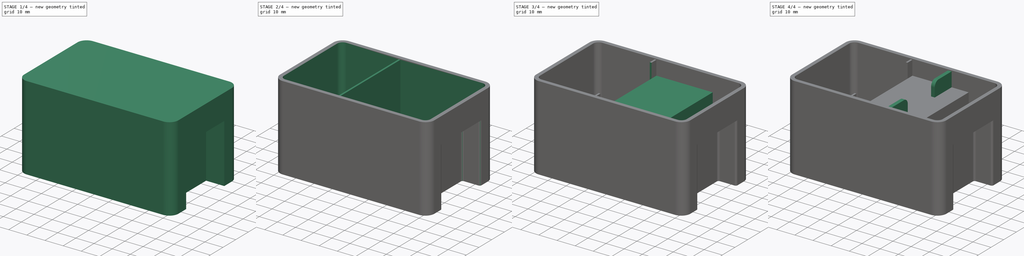
[diagram: build sequence overview — one tinted view per stage of 4, left to right]
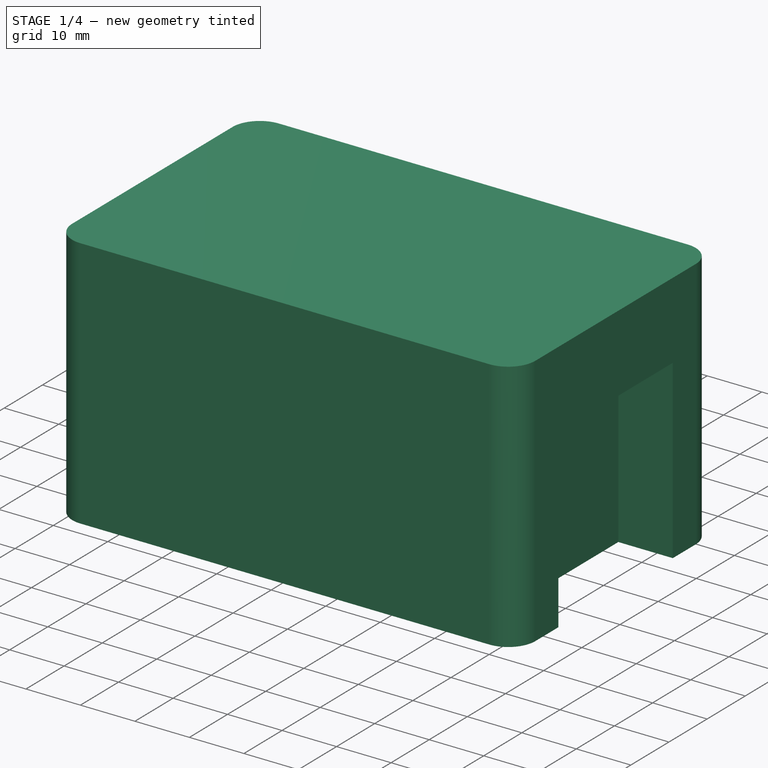
[diagram: stage 1 of 4 — iso view after this stage's code; geometry added in this stage tinted green]
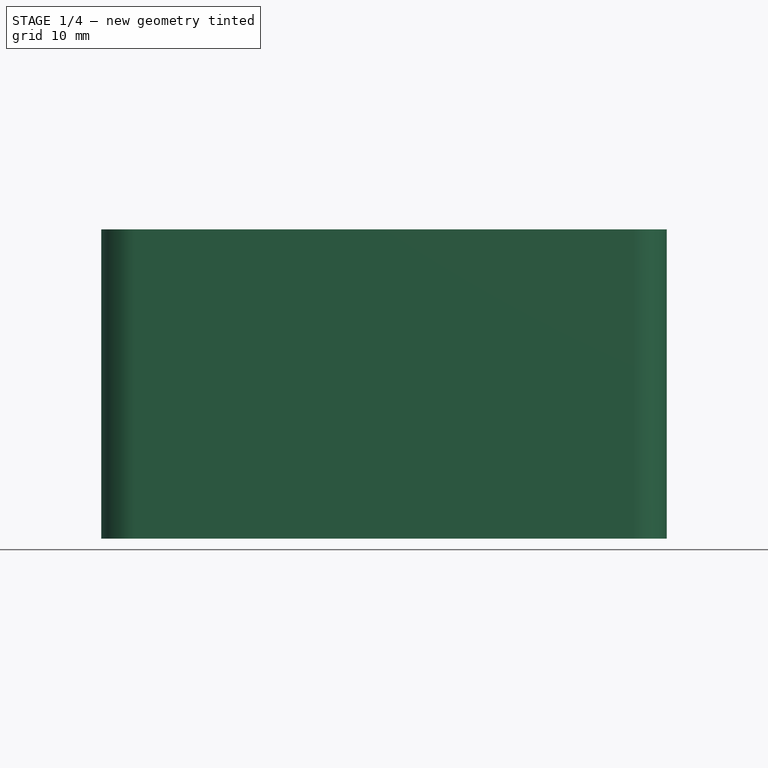
[diagram: stage 1 of 4 — front view after this stage's code; geometry added in this stage tinted green]
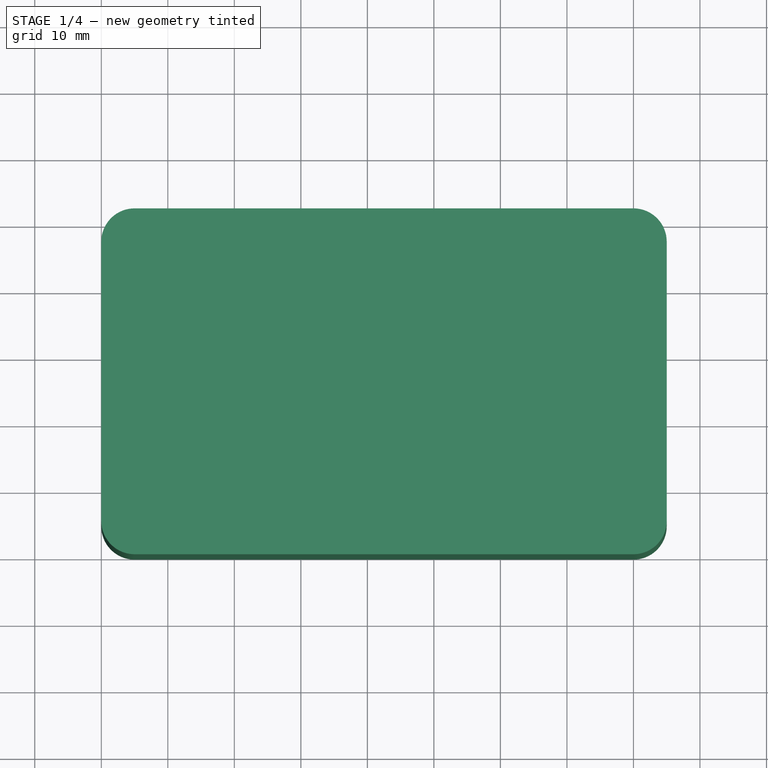
[diagram: stage 1 of 4 — top view after this stage's code; geometry added in this stage tinted green]
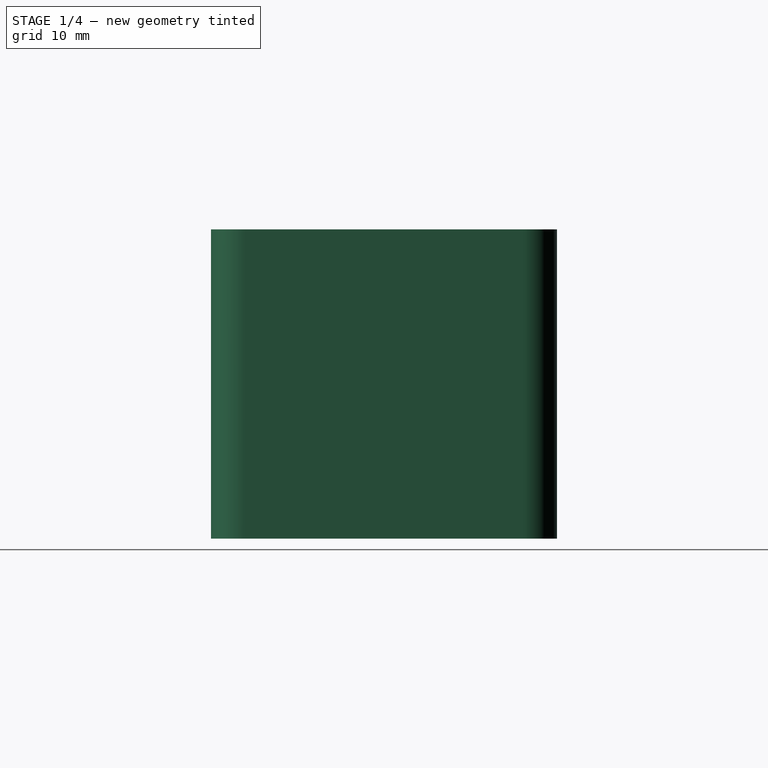
[diagram: stage 1 of 4 — right view after this stage's code; geometry added in this stage tinted green]
FCSTD DOCUMENT  (FreeCAD 0.20R29410 (Git))
Label: Case
License: All rights reserved
LicenseURL: http://en.wikipedia.org/wiki/All_rights_reserved
objects: Sketcher::SketchObject×5, PartDesign::Fillet×3, PartDesign::Pad×3, PartDesign::Pocket×2, PartDesign::AdditiveBox×1, PartDesign::Thickness×1, PartDesign::Plane×1, PartDesign::Mirrored×1, PartDesign::Body×1
note: 28 computed .brp shape members not serialized (recipe doc carries the construction recipe); baked Part::Feature solids carry a one-line shape summary decoded from their .brp

FEATURE [PartDesign::AdditiveBox] Box002
  AttacherType = Attacher::AttachEngine3D
  Height = 46.5
  Length = 85
  MapMode = 5
  Support = -> [XY_Plane076]
  Width = 52
FEATURE [PartDesign::Fillet] Fillet006
  Base = -> Box002 [Edge5,Edge1,Edge7,Edge3]
  BaseFeature = -> Box002
  Radius = 5
  SupportTransform = false
  UseAllEdges = false
FEATURE [Sketcher::SketchObject] Sketch010
  ExternalGeometry = -> [Fillet006]
  FullyConstrained = true
  MapMode = 5
  Placement = pos=(85,0,0) rot=(0.57735,0.57735,0.57735;2.0944rad)
  Support = -> [Fillet006]
  sketch-geometry (5):
    g0: LineSegment StartX=11 StartY=0 StartZ=0 EndX=41 EndY=0 EndZ=0
    g1: LineSegment StartX=41 StartY=0 StartZ=0 EndX=41 EndY=32.4 EndZ=0
    g2: LineSegment StartX=41 StartY=32.4 StartZ=0 EndX=11 EndY=32.4 EndZ=0
    g3: LineSegment StartX=11 StartY=32.4 StartZ=0 EndX=11 EndY=0 EndZ=0
    g4: LineSegment StartX=26 StartY=46.5 StartZ=0 EndX=26 EndY=0 EndZ=0
  constraints (14):
    c: Coincident(g0,g1)
    c: Coincident(g1,g2)
    c: Coincident(g2,g3)
    c: Coincident(g3,g0)
    c: Horizontal(g0)
    c: Horizontal(g2)
    c: Vertical(g1)
    c: Vertical(g3)
    c: PointOnObject(g0,g-1)
    c: PointOnObject(g4,g0)
    c: Symmetric(g-3,g-3,g4)
    c: Symmetric(g2,g1,g4)
    c: DistanceX(g2,g2) = 30
    c: DistanceY(g1,g-3) = 14.1
FEATURE [PartDesign::Pocket] Pocket001
  BaseFeature = -> Fillet006
  Direction = (-1,0,0)
  Length = 10
  Length2 = 5
  Profile = -> Sketch010
  ReferenceAxis = -> Sketch010 [N_Axis]
  Type = 0
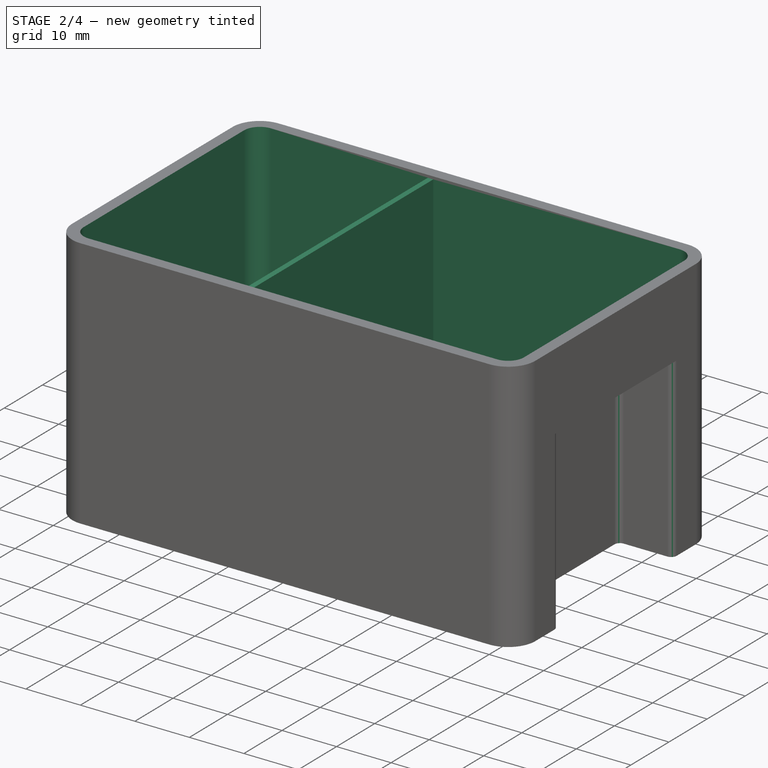
[diagram: stage 2 of 4 — iso view after this stage's code; geometry added in this stage tinted green]
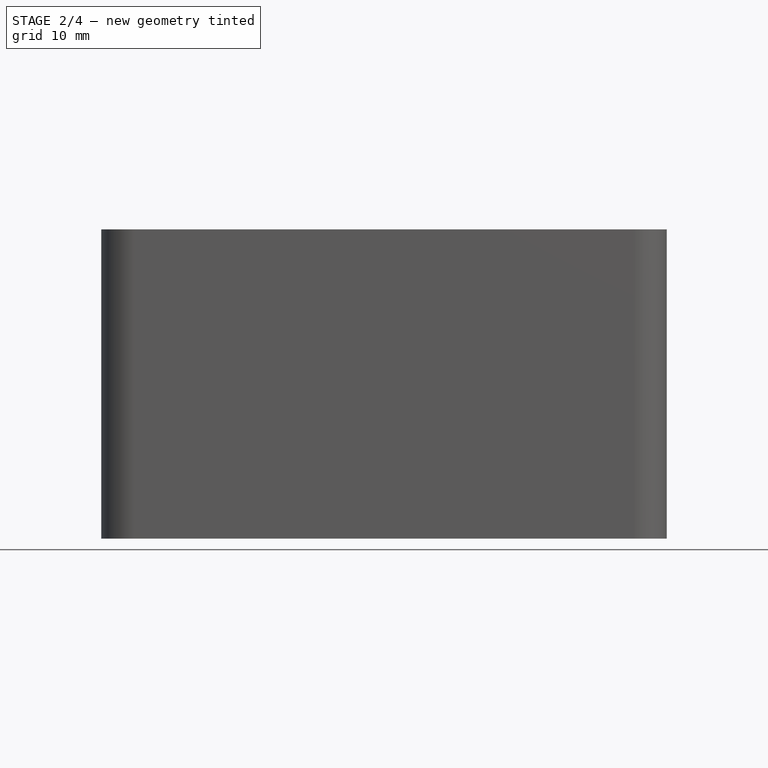
[diagram: stage 2 of 4 — front view after this stage's code; geometry added in this stage tinted green]
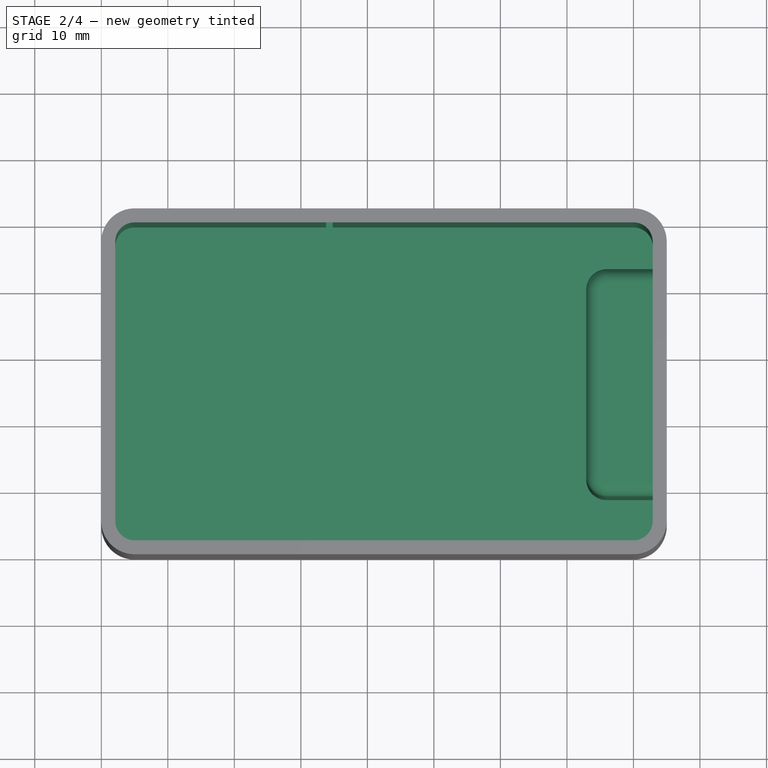
[diagram: stage 2 of 4 — top view after this stage's code; geometry added in this stage tinted green]
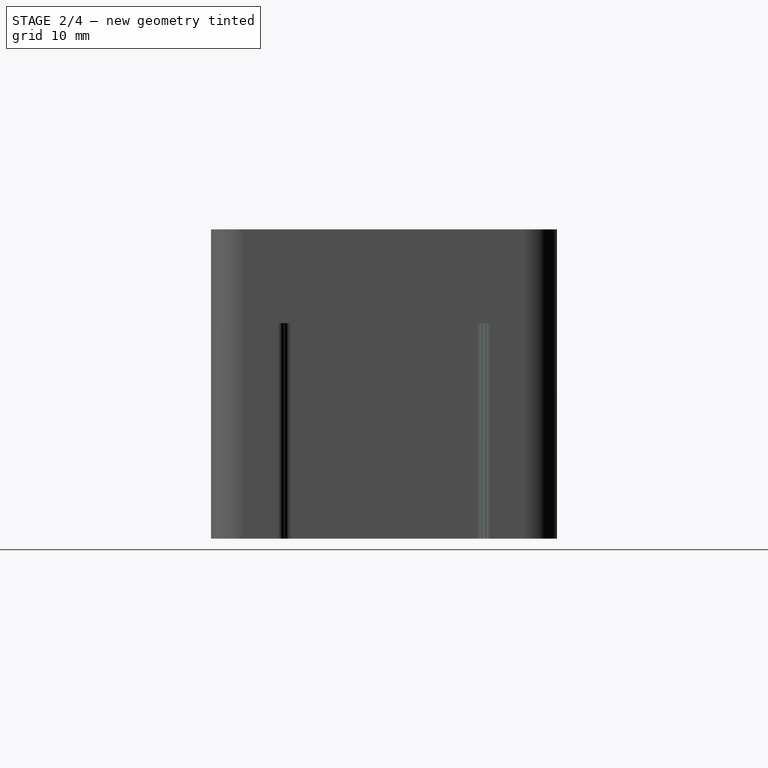
[diagram: stage 2 of 4 — right view after this stage's code; geometry added in this stage tinted green]
FEATURE [PartDesign::Fillet] Fillet007
  Base = -> Pocket001 [Edge31,Edge35,Edge33,Edge29]
  BaseFeature = -> Pocket001
  Radius = 1
  SupportTransform = false
  UseAllEdges = false
FEATURE [PartDesign::Thickness] Thickness001
  Base = -> Fillet007 [Face18]
  BaseFeature = -> Fillet007
  Intersection = true
  Join = 0
  Mode = 0
  Reversed = true
  SupportTransform = false
  Value = 2.1
FEATURE [Sketcher::SketchObject] Sketch011
  ExternalGeometry = -> [Thickness001]
  FullyConstrained = true
  MapMode = 5
  Placement = pos=(0,0,2.1) rot=(0,0,1;0rad)
  Support = -> [Thickness001]
  sketch-geometry (4):
    g0: LineSegment StartX=33.8 StartY=49.9 StartZ=0 EndX=34.8 EndY=49.9 EndZ=0
    g1: LineSegment StartX=34.8 StartY=49.9 StartZ=0 EndX=34.8 EndY=2.1 EndZ=0
    g2: LineSegment StartX=34.8 StartY=2.1 StartZ=0 EndX=33.8 EndY=2.1 EndZ=0
    g3: LineSegment StartX=33.8 StartY=2.1 StartZ=0 EndX=33.8 EndY=49.9 EndZ=0
  constraints (12):
    c: Coincident(g0,g1)
    c: Coincident(g1,g2)
    c: Coincident(g2,g3)
    c: Coincident(g3,g0)
    c: Horizontal(g0)
    c: Horizontal(g2)
    c: Vertical(g1)
    c: Vertical(g3)
    c: PointOnObject(g0,g-3)
    c: PointOnObject(g1,g-4)
    c: DistanceX(g0,g0) = 1
    c: DistanceX(g-5,g0) = 31.7
FEATURE [PartDesign::Pad] Pad009
  BaseFeature = -> Thickness001
  Direction = (0,0,1)
  Length = 45
  Length2 = 10
  Offset = -0.5
  Profile = -> Sketch011
  ReferenceAxis = -> Sketch011 [N_Axis]
  Type = 3
  UpToFace = -> Thickness001 [Face18]
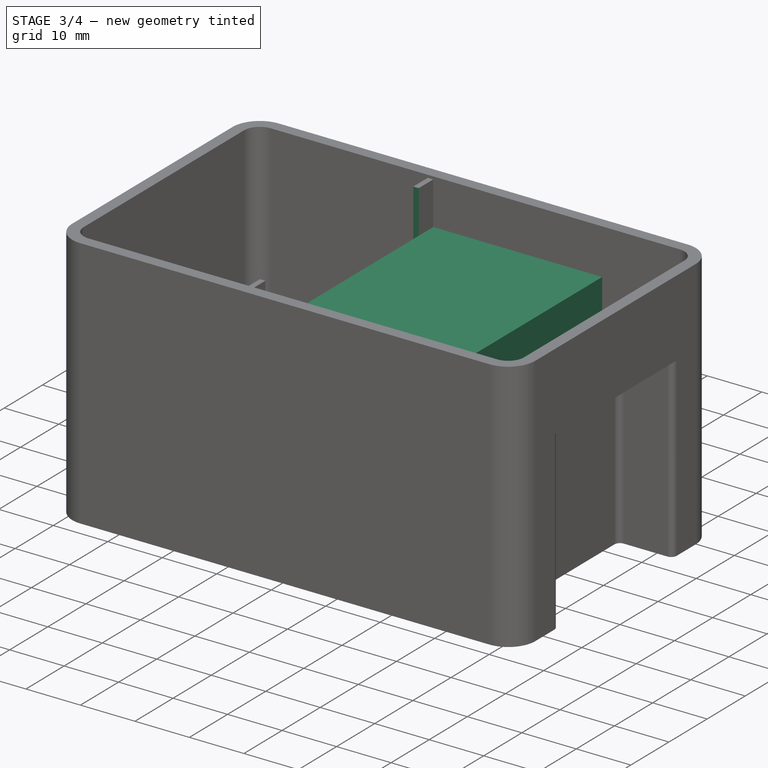
[diagram: stage 3 of 4 — iso view after this stage's code; geometry added in this stage tinted green]
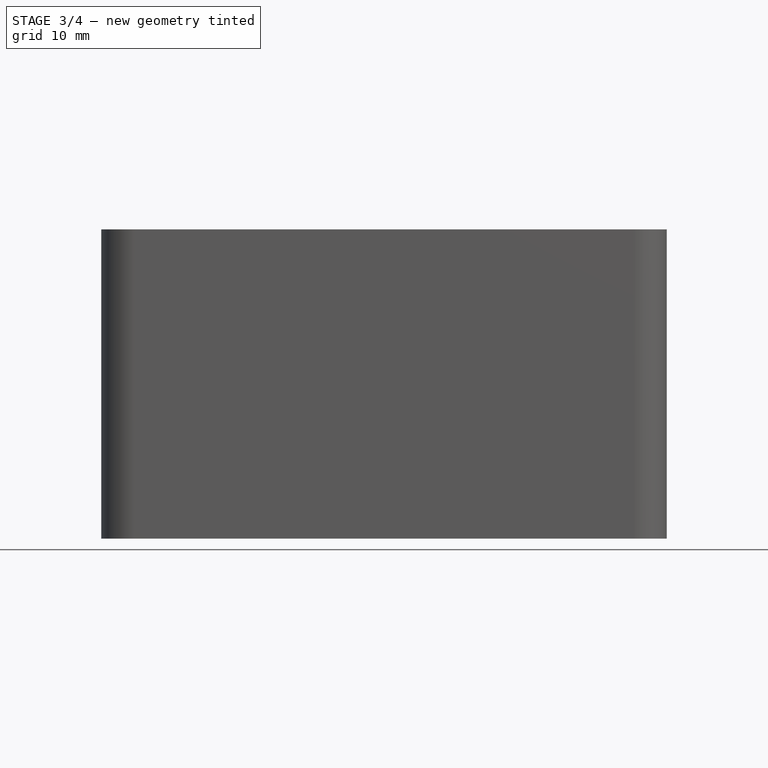
[diagram: stage 3 of 4 — front view after this stage's code; geometry added in this stage tinted green]
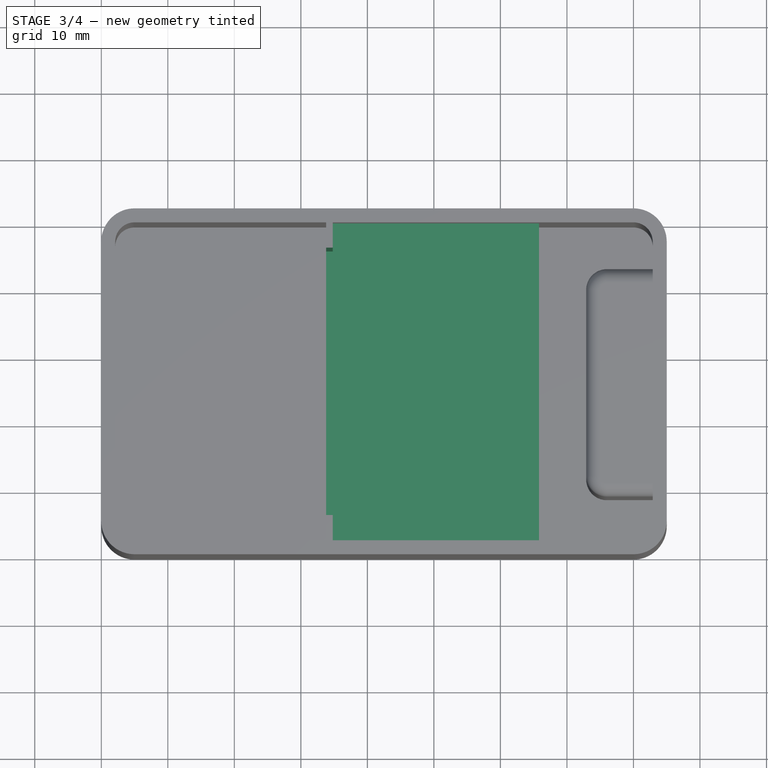
[diagram: stage 3 of 4 — top view after this stage's code; geometry added in this stage tinted green]
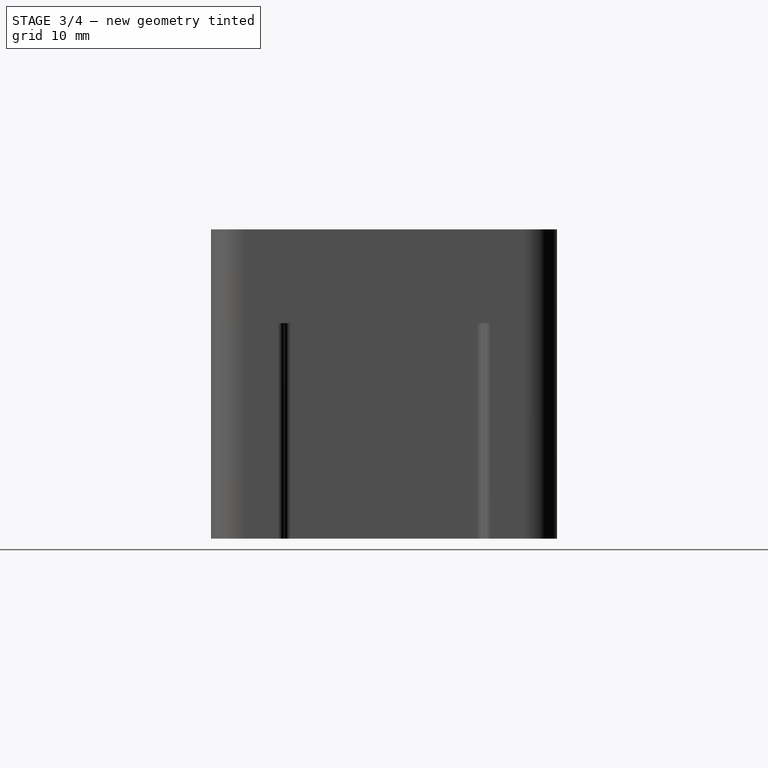
[diagram: stage 3 of 4 — right view after this stage's code; geometry added in this stage tinted green]
FEATURE [Sketcher::SketchObject] Sketch012
  ExternalGeometry = -> [Pad009]
  FullyConstrained = false
  MapMode = 5
  Placement = pos=(0,0,46) rot=(0,0,1;0rad)
  Support = -> [Pad009]
  sketch-geometry (5):
    g0: LineSegment StartX=34.8 StartY=26 StartZ=0 EndX=9.24822 EndY=26 EndZ=0
    g1: LineSegment StartX=34.8 StartY=5.9 StartZ=0 EndX=16.991 EndY=5.9 EndZ=0
    g2: LineSegment StartX=16.991 StartY=5.9 StartZ=0 EndX=16.991 EndY=46.1 EndZ=0
    g3: LineSegment StartX=16.991 StartY=46.1 StartZ=0 EndX=34.8 EndY=46.1 EndZ=0
    g4: LineSegment StartX=34.8 StartY=46.1 StartZ=0 EndX=34.8 EndY=5.9 EndZ=0
  constraints (12):
    c: PointOnObject(g0,g-3)
    c: Symmetric(g-3,g-3,g0)
    c: Coincident(g1,g2)
    c: Coincident(g2,g3)
    c: Coincident(g3,g4)
    c: Coincident(g4,g1)
    c: Horizontal(g1)
    c: Horizontal(g3)
    c: Vertical(g4)
    c: PointOnObject(g1,g-3)
    c: Symmetric(g2,g1,g0)
    c: DistanceY(g2,g2) = 40.2
FEATURE [PartDesign::Pocket] Pocket002
  BaseFeature = -> Pad009
  Direction = (0,0,-1)
  Length = 33.44
  Length2 = 5
  Profile = -> Sketch012
  ReferenceAxis = -> Sketch012 [N_Axis]
  Type = 0
FEATURE [Sketcher::SketchObject] Sketch
  ExternalGeometry = -> [Pocket002]
  FullyConstrained = true
  MapMode = 5
  Placement = pos=(0,0,2.1) rot=(0,0,1;0rad)
  Support = -> [Pocket002]
  sketch-geometry (4):
    g0: LineSegment StartX=34.8 StartY=49.9 StartZ=0 EndX=65.8 EndY=49.9 EndZ=0
    g1: LineSegment StartX=65.8 StartY=49.9 StartZ=0 EndX=65.8 EndY=2.1 EndZ=0
    g2: LineSegment StartX=65.8 StartY=2.1 StartZ=0 EndX=34.8 EndY=2.1 EndZ=0
    g3: LineSegment StartX=34.8 StartY=2.1 StartZ=0 EndX=34.8 EndY=49.9 EndZ=0
  constraints (10):
    c: Coincident(g0,g1)
    c: Coincident(g1,g2)
    c: Coincident(g2,g3)
    c: Coincident(g3,g0)
    c: Horizontal(g0)
    c: Horizontal(g2)
    c: Vertical(g1)
    c: Coincident(g0,g-3)
    c: Coincident(g2,g-3)
    c: DistanceX(g0,g0) = 31
FEATURE [PartDesign::Pad] Pad
  BaseFeature = -> Pocket002
  Direction = (0,0,1)
  Length = 36
  Length2 = 10
  Profile = -> Sketch
  ReferenceAxis = -> Sketch [N_Axis]
  Type = 0
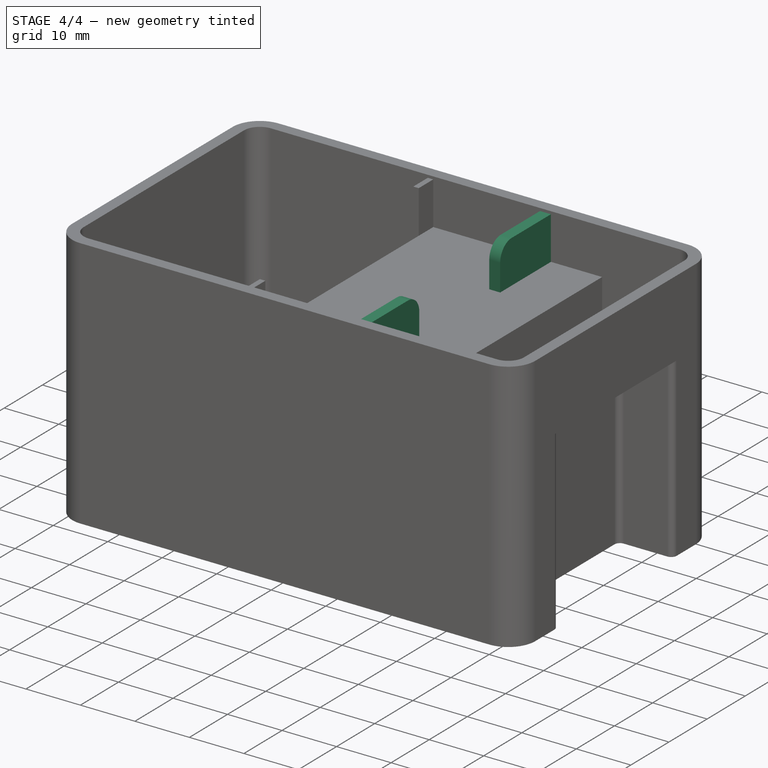
[diagram: stage 4 of 4 — iso view after this stage's code; geometry added in this stage tinted green]
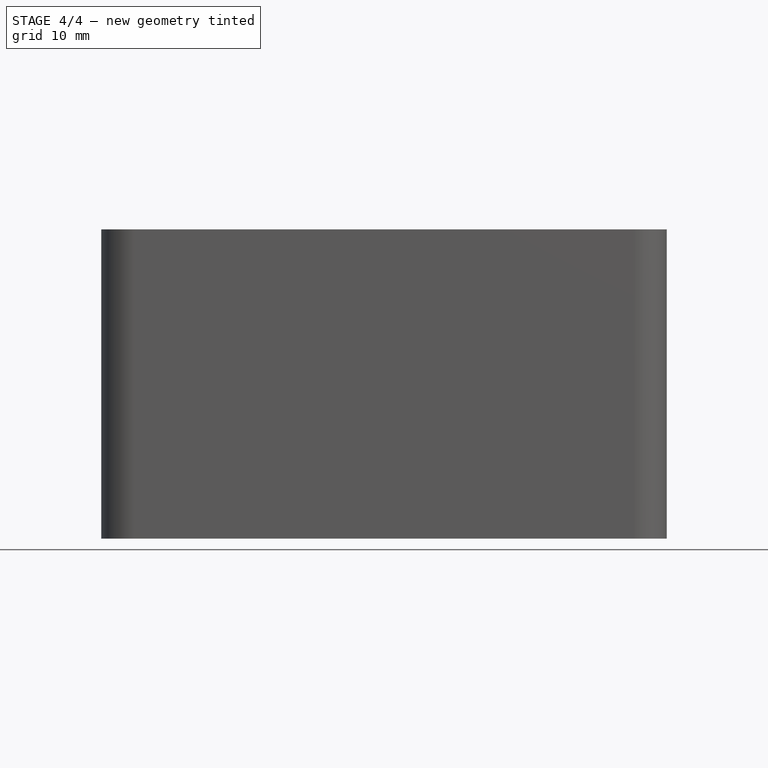
[diagram: stage 4 of 4 — front view after this stage's code; geometry added in this stage tinted green]
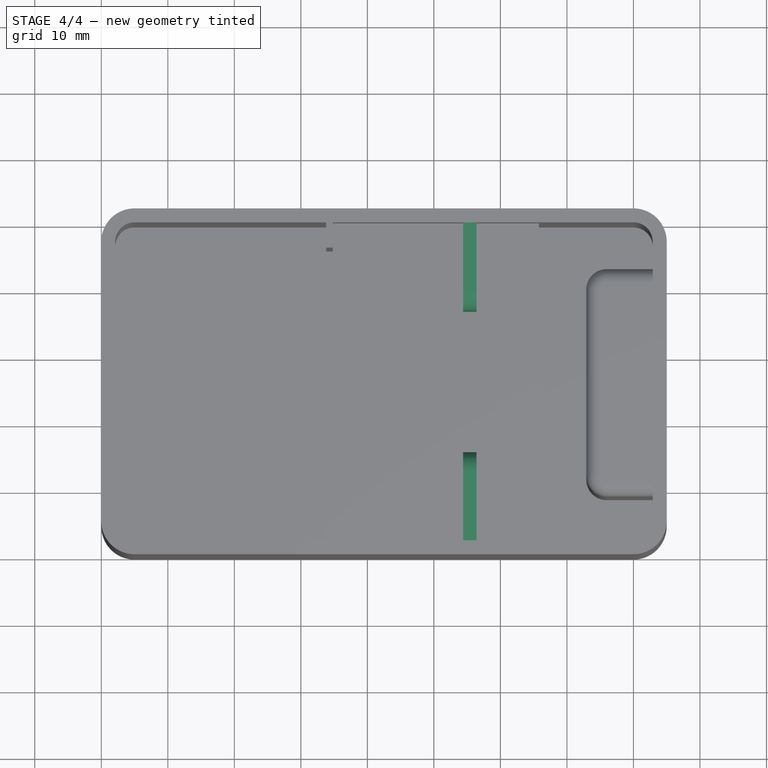
[diagram: stage 4 of 4 — top view after this stage's code; geometry added in this stage tinted green]
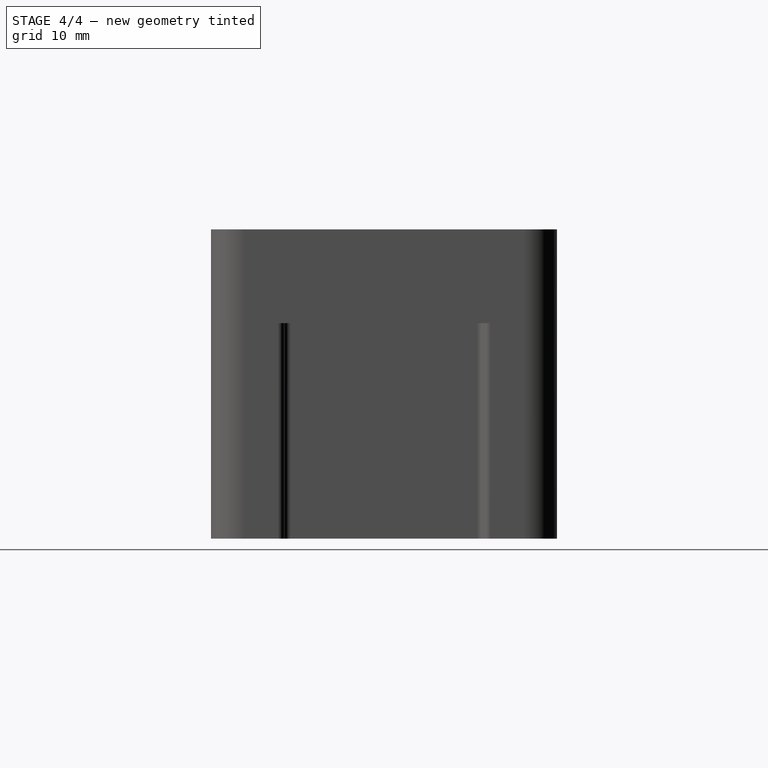
[diagram: stage 4 of 4 — right view after this stage's code; geometry added in this stage tinted green]
FEATURE [Sketcher::SketchObject] Sketch013
  ExternalGeometry = -> [Pad]
  FullyConstrained = true
  MapMode = 5
  Placement = pos=(0,0,38.1) rot=(0,0,1;0rad)
  Support = -> [Pad]
  sketch-geometry (4):
    g0: LineSegment StartX=54.4 StartY=15.4 StartZ=0 EndX=56.4 EndY=15.4 EndZ=0
    g1: LineSegment StartX=56.4 StartY=15.4 StartZ=0 EndX=56.4 EndY=2.1 EndZ=0
    g2: LineSegment StartX=56.4 StartY=2.1 StartZ=0 EndX=54.4 EndY=2.1 EndZ=0
    g3: LineSegment StartX=54.4 StartY=2.1 StartZ=0 EndX=54.4 EndY=15.4 EndZ=0
  constraints (12):
    c: Coincident(g0,g1)
    c: Coincident(g1,g2)
    c: Coincident(g2,g3)
    c: Coincident(g3,g0)
    c: Horizontal(g0)
    c: Horizontal(g2)
    c: Vertical(g1)
    c: Vertical(g3)
    c: PointOnObject(g2,g-3)
    c: DistanceX(g0,g0) = 2
    c: DistanceY(g1,g1) = 13.3
    c: DistanceX(g-3,g2) = 19.6
FEATURE [PartDesign::Pad] Pad010
  BaseFeature = -> Pad
  Direction = (0,0,1)
  Length = 10
  Length2 = 10
  Offset = -0.5
  Profile = -> Sketch013
  ReferenceAxis = -> Sketch013 [N_Axis]
  Type = 3
  UpToFace = -> Pad [Face18]
FEATURE [PartDesign::Plane] DatumPlane
  AttachmentOffset = pos=(0,0,0) rot=(1,0,0;1.5708rad)
  Length = 127.737
  MapMode = 45
  Placement = pos=(42.5,26,23.25) rot=(1,0,0;1.5708rad)
  ResizeMode = 0
  Width = 89.237
FEATURE [PartDesign::Mirrored] Mirrored
  BaseFeature = -> Pad010
  MirrorPlane = -> DatumPlane
  Originals = -> [Pad010]
FEATURE [PartDesign::Fillet] Fillet
  Base = -> Mirrored [Edge139,Edge147]
  BaseFeature = -> Mirrored
  Radius = 3
  SupportTransform = false
  UseAllEdges = false
FEATURE [PartDesign::Body] Body002  label="Case"
  Group = -> [Box002,Fillet006,Sketch010,Pocket001,Fillet007,Thickness001,Sketch011,Pad009,Sketch012,Pocket002,Sketch,Pad,Sketch013,Pad010,DatumPlane,Mirrored,Fillet]
  Origin = -> Origin076
  Tip = -> Fillet
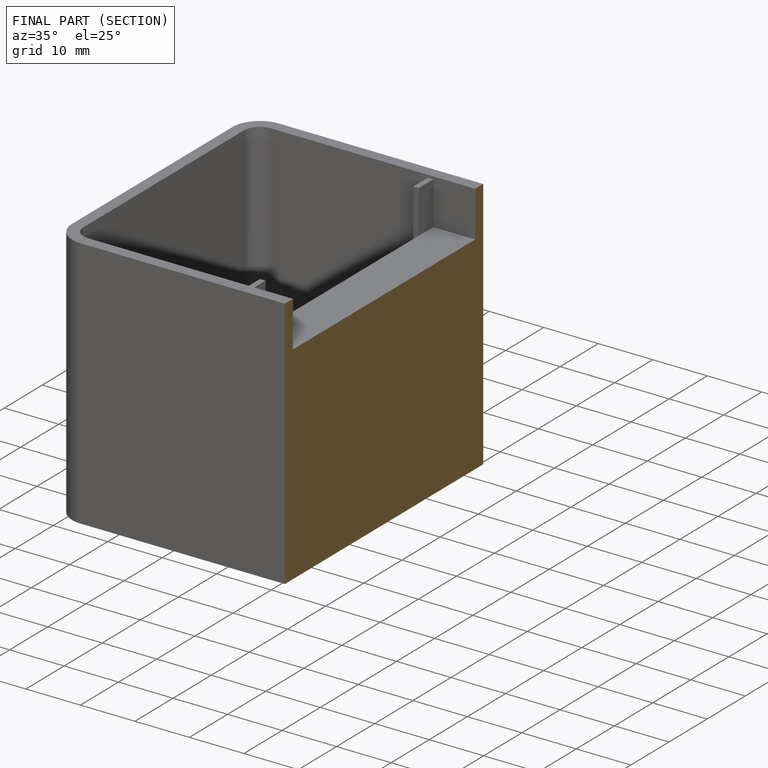
[diagram: finished part — half-section view (interior)]
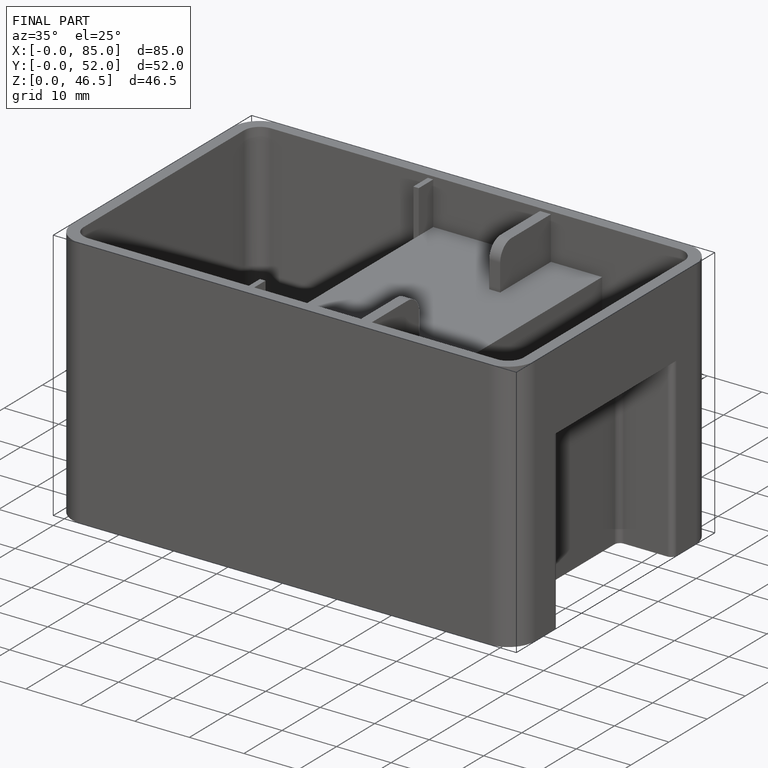
[diagram: finished part — iso view with bounding-box wireframe]
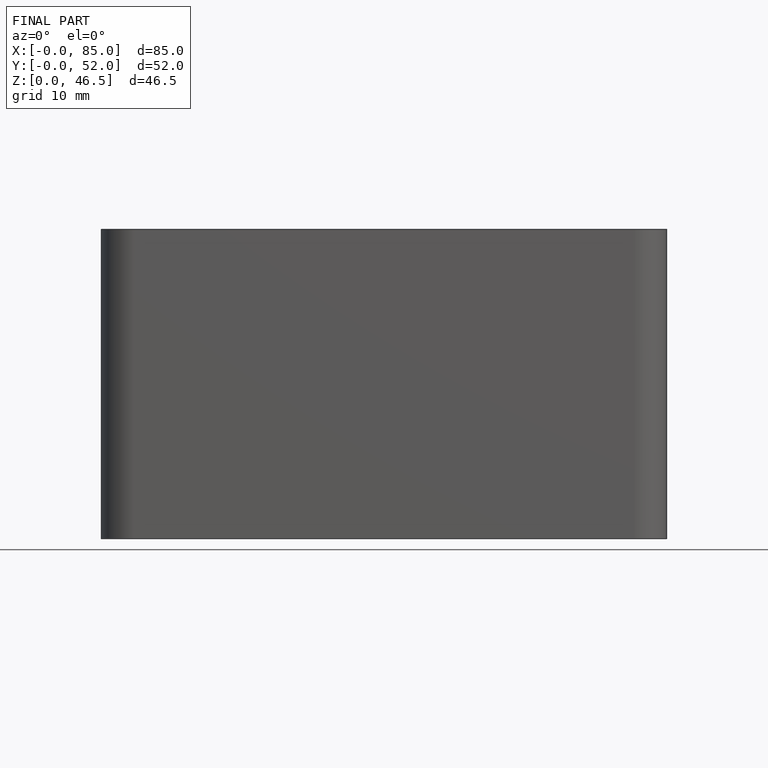
[diagram: finished part — front view with bounding-box wireframe]
